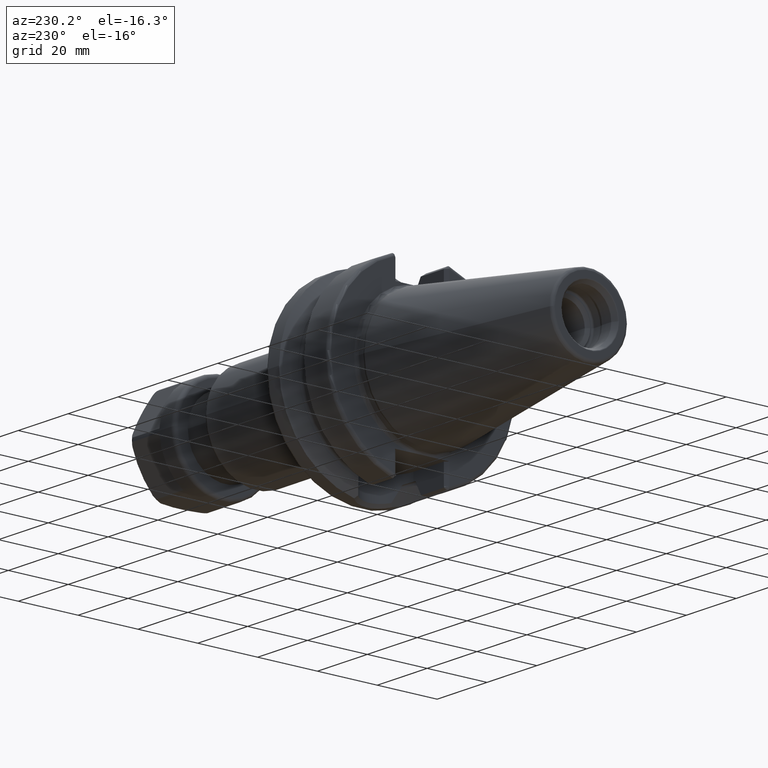
[diagram: clean part render]
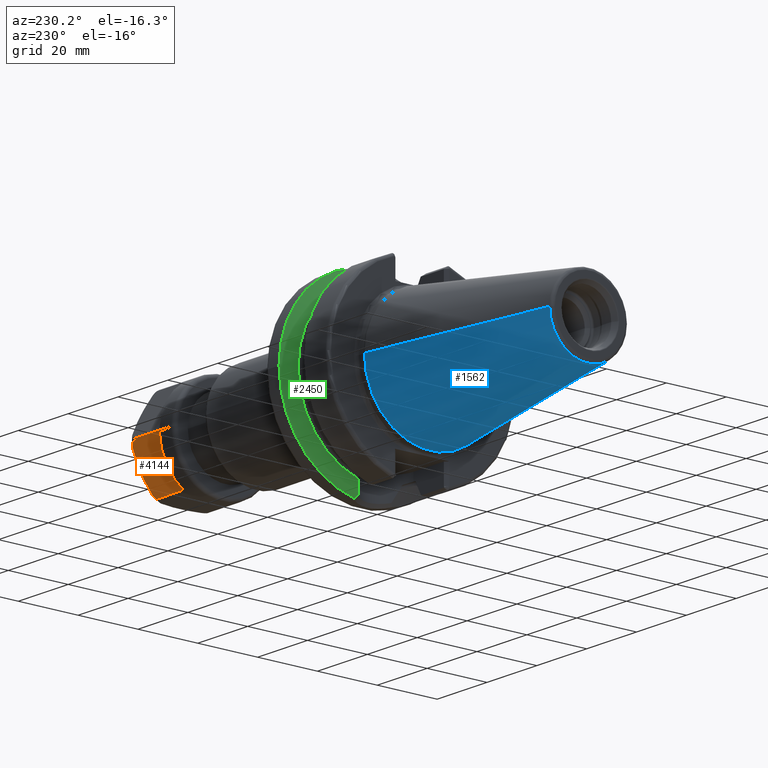
[diagram: same view with three faces highlighted in distinct colors, each labeled with its STEP entity id]
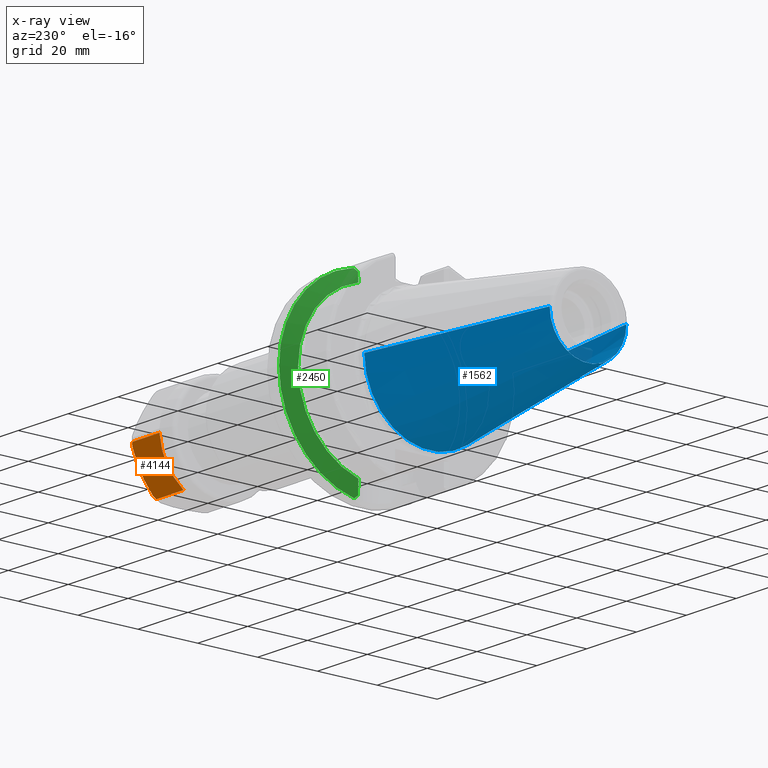
[diagram: x-ray of the same camera — body ghosted, the three highlighted faces saturated]
A machine part, auxiliary view with three faces highlighted in distinct colors.
The next image is the same camera in x-ray (body ghosted, the three faces saturated) — at least one of them is partly hidden behind the body in this view.
Their STEP definitions:

[orange] entity #4144 — the highlighted planar face has unit normal (0, -0.866, 0.5).
#3398=CARTESIAN_POINT('',(1.762879311067E1,9.706304892912E0,-1.318818677172E1));
#3399=CARTESIAN_POINT('',(1.783518476881E1,1.015192098345E1,-1.241635706224E1));
#3400=CARTESIAN_POINT('',(1.817379271881E1,1.103673598687E1,-1.088381252102E1));
#3401=CARTESIAN_POINT('',(1.843326934202E1,1.233775072113E1,-8.630388899882E0));
#3402=CARTESIAN_POINT('',(1.843317407038E1,1.364378086319E1,-6.368278337620E0));
#3403=CARTESIAN_POINT('',(1.817365600931E1,1.494440287302E1,-4.115534935150E0));
#3404=CARTESIAN_POINT('',(1.783512110256E1,1.582897859061E1,-2.583404849145E0));
#3405=CARTESIAN_POINT('',(1.762879311067E1,1.627445722062E1,-1.811813228277E0));
#3490=CARTESIAN_POINT('',(1.654626135594E1,8.990381056767E0,-1.442820323028E1));
#3491=CARTESIAN_POINT('',(1.663133375969E1,8.990381056767E0,-1.442820323028E1));
#3492=CARTESIAN_POINT('',(1.679554974256E1,9.008319998068E0,-1.439713207251E1));
#3493=CARTESIAN_POINT('',(1.702967586056E1,9.085449864247E0,-1.426353922550E1));
#3494=CARTESIAN_POINT('',(1.723504960512E1,9.205598196371E0,-1.405543620982E1));
#3495=CARTESIAN_POINT('',(1.740538646210E1,9.357706797040E0,-1.379197638519E1));
#3496=CARTESIAN_POINT('',(1.753869894456E1,9.531335419002E0,-1.349124279031E1));
#3497=CARTESIAN_POINT('',(1.760147975856E1,9.647333182045E0,-1.329032877115E1));
#3498=CARTESIAN_POINT('',(1.762879311067E1,9.706304892912E0,-1.318818677172E1));
#3590=CARTESIAN_POINT('',(1.762879311067E1,1.627445722062E1,-1.811813228277E0));
#3591=CARTESIAN_POINT('',(1.760135930288E1,1.633368900493E1,-1.709220768439E0));
#3592=CARTESIAN_POINT('',(1.753829156841E1,1.645016226804E1,-1.507483158997E0));
#3593=CARTESIAN_POINT('',(1.740404374214E1,1.662460489838E1,-1.205339660241E0));
#3594=CARTESIAN_POINT('',(1.723276370862E1,1.677685693130E1,
-9.416314036774E-1));
#3595=CARTESIAN_POINT('',(1.702726259196E1,1.689631751599E1,
-7.347196014845E-1));
#3596=CARTESIAN_POINT('',(1.679442486846E1,1.697258284358E1,
-6.026241792443E-1));
#3597=CARTESIAN_POINT('',(1.663092243804E1,1.699038105677E1,
-5.717967697245E-1));
#3598=CARTESIAN_POINT('',(1.654626135594E1,1.699038105677E1,
-5.717967697245E-1));
#3610=CARTESIAN_POINT('',(6.010094158030E0,1.699038105677E1,
-5.717967697245E-1));
#3611=CARTESIAN_POINT('',(6.248860202043E0,1.673667922571E1,-1.011221231093E0));
#3612=CARTESIAN_POINT('',(6.673358389767E0,1.624777485462E1,-1.858028441906E0));
#3613=CARTESIAN_POINT('',(7.159539044282E0,1.557555300184E1,-3.022350844643E0));
#3614=CARTESIAN_POINT('',(7.516203491396E0,1.495849625540E1,-4.091124481539E0));
#3615=CARTESIAN_POINT('',(7.761854781701E0,1.439387442582E1,-5.069078174002E0));
#3616=CARTESIAN_POINT('',(7.915629231596E0,1.387929598491E1,-5.960354190990E0));
#3617=CARTESIAN_POINT('',(7.995386624528E0,1.340806721507E1,-6.776546314333E0));
#3618=CARTESIAN_POINT('',(8.017308991082E0,1.298987968562E1,-7.500868541609E0));
#3619=CARTESIAN_POINT('',(7.995278327489E0,1.257168576552E1,-8.225200989965E0));
#3620=CARTESIAN_POINT('',(7.915368146845E0,1.210033817211E1,-9.041601465272E0));
#3621=CARTESIAN_POINT('',(7.761438264416E0,1.158573896458E1,-9.932904124940E0));
#3622=CARTESIAN_POINT('',(7.515626893748E0,1.102116355431E1,-1.091081217801E1));
#3623=CARTESIAN_POINT('',(7.158945869490E0,1.040420274504E1,-1.197928992813E1));
#3624=CARTESIAN_POINT('',(6.672583855436E0,9.732359832832E0,-1.314344010025E1));
#3625=CARTESIAN_POINT('',(6.248870178215E0,9.243432783046E0,-1.398908210096E1));
#3626=CARTESIAN_POINT('',(6.010360585263E0,8.990019908335E0,-1.442800607525E1));
#3628=DIRECTION('',(9.999999992374E-1,3.427788848595E-5,-1.871268783821E-5));
#3629=VECTOR('',#3628,1.053590077872E1);
#3630=CARTESIAN_POINT('',(6.010360585263E0,8.990019908335E0,-1.442800607525E1));
#3631=LINE('',#3630,#3629);
#3632=DIRECTION('',(-1.E0,0.E0,0.E0));
#3633=VECTOR('',#3632,1.053616719791E1);
#3634=CARTESIAN_POINT('',(1.654626135594E1,1.699038105677E1,
-5.717967697245E-1));
#3635=LINE('',#3634,#3633);
#3890=VERTEX_POINT('',#3398);
#3891=VERTEX_POINT('',#3405);
#3902=VERTEX_POINT('',#3598);
#3903=VERTEX_POINT('',#3490);
#3918=CARTESIAN_POINT('',(6.010022197914E0,1.699045297670E1,
-5.717991917679E-1));
#3919=CARTESIAN_POINT('',(6.010022197914E0,8.990424116185E0,-1.442827233047E1));
#3920=VERTEX_POINT('',#3918);
#3921=VERTEX_POINT('',#3919);
#4130=CARTESIAN_POINT('',(1.9E1,1.732050807569E1,0.E0));
#4131=DIRECTION('',(0.E0,-8.660254037844E-1,5.E-1));
#4132=DIRECTION('',(0.E0,-5.E-1,-8.660254037844E-1));
#4133=AXIS2_PLACEMENT_3D('',#4130,#4131,#4132);
#4134=PLANE('',#4133);
#4136=ORIENTED_EDGE('',*,*,#4135,.T.);
#4137=ORIENTED_EDGE('',*,*,#4016,.T.);
#4138=ORIENTED_EDGE('',*,*,#4041,.T.);
#4139=ORIENTED_EDGE('',*,*,#3958,.T.);
#4140=ORIENTED_EDGE('',*,*,#4120,.T.);
#4141=ORIENTED_EDGE('',*,*,#4020,.T.);
#4142=EDGE_LOOP('',(#4136,#4137,#4138,#4139,#4140,#4141));
#4143=FACE_OUTER_BOUND('',#4142,.F.);
#4144=ADVANCED_FACE('',(#4143),#4134,.F.);
#3406=B_SPLINE_CURVE_WITH_KNOTS('',3,(#3398,#3399,#3400,#3401,#3402,#3403,#3404,
#3405),.UNSPECIFIED.,.F.,.F.,(4,1,1,1,1,4),(0.E0,2.E-1,4.E-1,6.E-1,8.E-1,1.E0),
.UNSPECIFIED.);
#3499=B_SPLINE_CURVE_WITH_KNOTS('',3,(#3490,#3491,#3492,#3493,#3494,#3495,#3496,
#3497,#3498),.UNSPECIFIED.,.F.,.F.,(4,1,1,1,1,1,4),(0.E0,1.666666666667E-1,
3.333333333333E-1,5.E-1,6.666666666667E-1,8.333333333333E-1,1.E0),
.UNSPECIFIED.);
#3599=B_SPLINE_CURVE_WITH_KNOTS('',3,(#3590,#3591,#3592,#3593,#3594,#3595,#3596,
#3597,#3598),.UNSPECIFIED.,.F.,.F.,(4,1,1,1,1,1,4),(0.E0,1.666666666667E-1,
3.333333333333E-1,5.E-1,6.666666666667E-1,8.333333333333E-1,1.E0),
.UNSPECIFIED.);
#3627=B_SPLINE_CURVE_WITH_KNOTS('',3,(#3610,#3611,#3612,#3613,#3614,#3615,#3616,
#3617,#3618,#3619,#3620,#3621,#3622,#3623,#3624,#3625,#3626),.UNSPECIFIED.,.F.,
.F.,(4,1,1,1,1,1,1,1,1,1,1,1,1,1,4),(0.E0,7.142857142857E-2,1.428571428571E-1,
2.142857142857E-1,2.857142857143E-1,3.571428571429E-1,4.285714285714E-1,5.E-1,
5.714285714286E-1,6.428571428571E-1,7.142857142857E-1,7.857142857143E-1,
8.571428571429E-1,9.285714285714E-1,1.E0),.UNSPECIFIED.);
#3958=EDGE_CURVE('',#3890,#3891,#3406,.T.);
#4016=EDGE_CURVE('',#3921,#3903,#3631,.T.);
#4020=EDGE_CURVE('',#3902,#3920,#3635,.T.);
#4041=EDGE_CURVE('',#3903,#3890,#3499,.T.);
#4120=EDGE_CURVE('',#3891,#3902,#3599,.T.);
#4135=EDGE_CURVE('',#3920,#3921,#3627,.T.);

[blue] entity #1562 — the highlighted conical surface has half-angle 8.298 deg.
#32=CARTESIAN_POINT('',(-6.454431866917E1,0.E0,0.E0));
#33=DIRECTION('',(-1.E0,0.E0,0.E0));
#34=DIRECTION('',(0.E0,1.E0,0.E0));
#35=AXIS2_PLACEMENT_3D('',#32,#33,#34);
#47=DIRECTION('',(-9.895312636440E-1,-1.443186691705E-1,0.E0));
#48=VECTOR('',#47,6.394703124850E1);
#49=CARTESIAN_POINT('',(-1.266732031557E0,2.204025284980E1,0.E0));
#50=LINE('',#49,#48);
#51=DIRECTION('',(-9.895312636440E-1,1.443186691705E-1,0.E0));
#52=VECTOR('',#51,6.394703124850E1);
#53=CARTESIAN_POINT('',(-1.266732031557E0,-2.204025284980E1,0.E0));
#54=LINE('',#53,#52);
#55=CARTESIAN_POINT('',(-1.266732031557E0,0.E0,0.E0));
#56=DIRECTION('',(-1.E0,0.E0,0.E0));
#57=DIRECTION('',(0.E0,1.E0,0.E0));
#58=AXIS2_PLACEMENT_3D('',#55,#56,#57);
#1226=CARTESIAN_POINT('',(-6.454431866917E1,1.281150240261E1,0.E0));
#1228=VERTEX_POINT('',#1226);
#1230=CARTESIAN_POINT('',(-6.454431866917E1,-1.281150240261E1,0.E0));
#1232=VERTEX_POINT('',#1230);
#1445=CARTESIAN_POINT('',(-1.266732031557E0,2.204025284980E1,0.E0));
#1446=VERTEX_POINT('',#1445);
#1447=CARTESIAN_POINT('',(-1.266732031557E0,-2.204025284980E1,0.E0));
#1448=VERTEX_POINT('',#1447);
#1550=CARTESIAN_POINT('',(-3.290552535036E1,0.E0,0.E0));
#1551=DIRECTION('',(1.E0,0.E0,0.E0));
#1552=DIRECTION('',(0.E0,-1.E0,0.E0));
#1553=AXIS2_PLACEMENT_3D('',#1550,#1551,#1552);
#1554=CONICAL_SURFACE('',#1553,1.742587762621E1,8.297826828206E0);
#1555=ORIENTED_EDGE('',*,*,#1540,.T.);
#1556=ORIENTED_EDGE('',*,*,#1517,.T.);
#1557=ORIENTED_EDGE('',*,*,#1544,.F.);
#1559=ORIENTED_EDGE('',*,*,#1558,.F.);
#1560=EDGE_LOOP('',(#1555,#1556,#1557,#1559));
#1561=FACE_OUTER_BOUND('',#1560,.F.);
#1562=ADVANCED_FACE('',(#1561),#1554,.T.);
#36=CIRCLE('',#35,1.281150240261E1);
#59=CIRCLE('',#58,2.204025284980E1);
#1517=EDGE_CURVE('',#1228,#1232,#36,.T.);
#1540=EDGE_CURVE('',#1446,#1228,#50,.T.);
#1544=EDGE_CURVE('',#1448,#1232,#54,.T.);
#1558=EDGE_CURVE('',#1446,#1448,#59,.T.);

[green] entity #2450 — the highlighted conical surface has half-angle 60 deg.
#264=CARTESIAN_POINT('',(2.162727746897E1,0.E0,0.E0));
#265=DIRECTION('',(1.E0,0.E0,0.E0));
#266=DIRECTION('',(0.E0,2.025221356988E-1,-9.792776851088E-1));
#267=AXIS2_PLACEMENT_3D('',#264,#265,#266);
#413=CARTESIAN_POINT('',(1.91375E1,7.047603759435E0,-2.624530807186E1));
#414=CARTESIAN_POINT('',(1.926924659829E1,6.973155642658E0,-2.650157525064E1));
#415=CARTESIAN_POINT('',(1.953215093318E1,6.814880472402E0,-2.701339248784E1));
#416=CARTESIAN_POINT('',(1.992520758926E1,6.546145713789E0,-2.777975883833E1));
#417=CARTESIAN_POINT('',(2.031299763175E1,6.245544639533E0,-2.853691128968E1));
#418=CARTESIAN_POINT('',(2.069290284024E1,5.911695129812E0,-2.927960564408E1));
#419=CARTESIAN_POINT('',(2.093808029853E1,5.667101824111E0,-2.975945931955E1));
#420=CARTESIAN_POINT('',(2.105861623912E1,5.538622599637E0,-2.999548645237E1));
#488=CARTESIAN_POINT('',(2.097101805574E1,5.630538071564E0,2.982397761288E1));
#489=CARTESIAN_POINT('',(2.082604881782E1,5.780282855198E0,2.954017722398E1));
#490=CARTESIAN_POINT('',(2.053095055184E1,6.062081832034E0,2.896282820239E1));
#491=CARTESIAN_POINT('',(2.007321533351E1,6.438417817754E0,2.806855111877E1));
#492=CARTESIAN_POINT('',(1.960693883943E1,6.768577999667E0,2.715904469241E1));
#493=CARTESIAN_POINT('',(1.929432982957E1,6.958981467721E0,2.655036595187E1));
#494=CARTESIAN_POINT('',(1.91375E1,7.047603759435E0,2.624530807186E1));
#763=CARTESIAN_POINT('',(1.91375E1,0.E0,0.E0));
#764=DIRECTION('',(-1.E0,0.E0,0.E0));
#765=DIRECTION('',(0.E0,2.593406914876E-1,9.657859005694E-1));
#766=AXIS2_PLACEMENT_3D('',#763,#764,#765);
#780=CARTESIAN_POINT('',(2.105861623912E1,5.538622599637E0,-2.999548645237E1));
#781=CARTESIAN_POINT('',(2.111989614702E1,5.630136295378E0,-3.008652275541E1));
#782=CARTESIAN_POINT('',(2.124372313828E1,5.814239626407E0,-3.027008886976E1));
#783=CARTESIAN_POINT('',(2.143328453670E1,6.093672457464E0,-3.054994203428E1));
#784=CARTESIAN_POINT('',(2.156218936675E1,6.282134222929E0,-3.073948617248E1));
#785=CARTESIAN_POINT('',(2.162727746897E1,6.376915747817E0,-3.083500610986E1));
#787=CARTESIAN_POINT('',(2.162727746897E1,0.E0,0.E0));
#788=DIRECTION('',(1.E0,0.E0,0.E0));
#789=DIRECTION('',(0.E0,1.E0,0.E0));
#790=AXIS2_PLACEMENT_3D('',#787,#788,#789);
#1006=CARTESIAN_POINT('',(2.162727746897E1,6.599266458023E0,3.078818504664E1));
#1007=CARTESIAN_POINT('',(2.155180167283E1,6.489456770420E0,3.067802487357E1));
#1008=CARTESIAN_POINT('',(2.140255803858E1,6.271303447789E0,3.045972360003E1));
#1009=CARTESIAN_POINT('',(2.118379105962E1,5.948395649424E0,3.013829699472E1));
#1010=CARTESIAN_POINT('',(2.104137401503E1,5.736018183883E0,2.992807656128E1));
#1011=CARTESIAN_POINT('',(2.097101805574E1,5.630538071564E0,2.982397761288E1));
#1266=CARTESIAN_POINT('',(1.91375E1,7.047603759435E0,2.624530807186E1));
#1267=CARTESIAN_POINT('',(1.91375E1,7.047603759435E0,-2.624530807186E1));
#1268=VERTEX_POINT('',#1266);
#1269=VERTEX_POINT('',#1267);
#1282=CARTESIAN_POINT('',(2.162727746897E1,3.14875E1,0.E0));
#1283=CARTESIAN_POINT('',(2.162727746897E1,6.599266458023E0,3.078818504664E1));
#1284=VERTEX_POINT('',#1282);
#1285=VERTEX_POINT('',#1283);
#1296=CARTESIAN_POINT('',(2.162727746897E1,6.376915747817E0,-3.083500610986E1));
#1297=VERTEX_POINT('',#1296);
#1387=VERTEX_POINT('',#488);
#1395=VERTEX_POINT('',#420);
#2433=CARTESIAN_POINT('',(2.038238873448E1,0.E0,0.E0));
#2434=DIRECTION('',(1.E0,0.E0,0.E0));
#2435=DIRECTION('',(0.E0,-1.E0,0.E0));
#2436=AXIS2_PLACEMENT_3D('',#2433,#2434,#2435);
#2437=CONICAL_SURFACE('',#2436,2.933128946210E1,6.E1);
#2438=ORIENTED_EDGE('',*,*,#1975,.T.);
#2439=ORIENTED_EDGE('',*,*,#1950,.T.);
#2441=ORIENTED_EDGE('',*,*,#2440,.T.);
#2442=ORIENTED_EDGE('',*,*,#1831,.T.);
#2444=ORIENTED_EDGE('',*,*,#2443,.T.);
#2446=ORIENTED_EDGE('',*,*,#2445,.T.);
#2447=ORIENTED_EDGE('',*,*,#2038,.T.);
#2448=EDGE_LOOP('',(#2438,#2439,#2441,#2442,#2444,#2446,#2447));
#2449=FACE_OUTER_BOUND('',#2448,.F.);
#2450=ADVANCED_FACE('',(#2449),#2437,.T.);
#268=CIRCLE('',#267,3.14875E1);
#421=B_SPLINE_CURVE_WITH_KNOTS('',3,(#413,#414,#415,#416,#417,#418,#419,#420),
.UNSPECIFIED.,.F.,.F.,(4,1,1,1,1,4),(0.E0,2.E-1,4.E-1,6.E-1,8.E-1,1.E0),
.UNSPECIFIED.);
#495=B_SPLINE_CURVE_WITH_KNOTS('',3,(#488,#489,#490,#491,#492,#493,#494),
.UNSPECIFIED.,.F.,.F.,(4,1,1,1,4),(0.E0,2.5E-1,5.E-1,7.5E-1,1.E0),
.UNSPECIFIED.);
#767=CIRCLE('',#766,2.717507892421E1);
#786=B_SPLINE_CURVE_WITH_KNOTS('',3,(#780,#781,#782,#783,#784,#785),
.UNSPECIFIED.,.F.,.F.,(4,1,1,4),(0.E0,3.333333333333E-1,6.666666666667E-1,1.E0),
.UNSPECIFIED.);
#791=CIRCLE('',#790,3.14875E1);
#1012=B_SPLINE_CURVE_WITH_KNOTS('',3,(#1006,#1007,#1008,#1009,#1010,#1011),
.UNSPECIFIED.,.F.,.F.,(4,1,1,4),(0.E0,3.333333333333E-1,6.666666666667E-1,1.E0),
.UNSPECIFIED.);
#1831=EDGE_CURVE('',#1297,#1284,#268,.T.);
#1950=EDGE_CURVE('',#1269,#1395,#421,.T.);
#1975=EDGE_CURVE('',#1268,#1269,#767,.T.);
#2038=EDGE_CURVE('',#1387,#1268,#495,.T.);
#2440=EDGE_CURVE('',#1395,#1297,#786,.T.);
#2443=EDGE_CURVE('',#1284,#1285,#791,.T.);
#2445=EDGE_CURVE('',#1285,#1387,#1012,.T.);